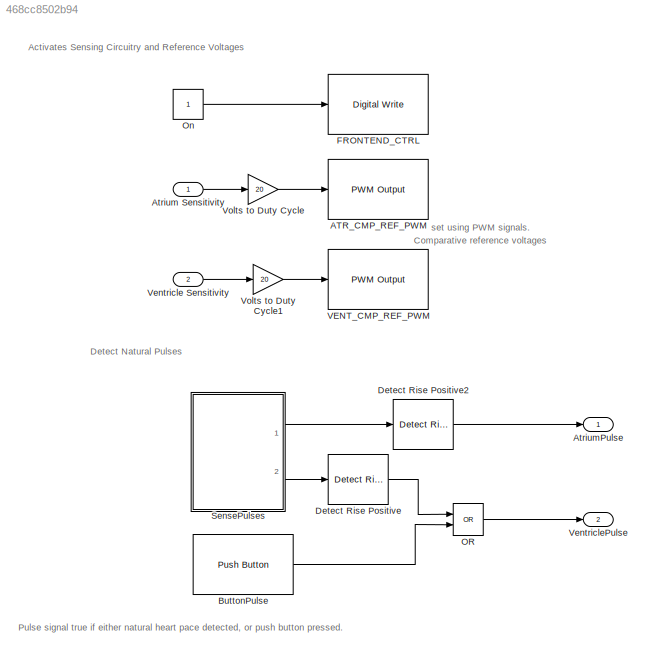
MODEL slx_468cc8502b94
KIND model
CONFIG AbsTol = auto
CONFIG EnableMultiTasking = on
CONFIG FixedStep = 1e-3
CONFIG MaxStep = auto
CONFIG MinStep = auto
CONFIG RelTol = 1e-3
CONFIG SampleTimeConstraint = Unconstrained
CONFIG Solver = FixedStepAuto
CONFIG SolverName = FixedStepAuto
CONFIG StartTime = 0.0
CONFIG StopTime = 10.0
BLOCK [Inport]  Atrium Sensitivity
  OutDataTypeStr = single
  Unit = volt
BLOCK [Reference] ATR_CMP_REF_PWM  REF=frdmk64flib/PWM Output
  Ports = [1]
  SourceBlock = frdmk64flib/PWM Output
  SourceProductBaseCode = EC_FRDM_K64F
  SourceType = freedomk64f.PWMOutput
BLOCK [Outport] AtriumPulse
BLOCK [Reference] ButtonPulse  REF=frdmk64flib/Push Button
  Ports = [0, 1]
  SourceBlock = frdmk64flib/Push Button
  SourceProductBaseCode = EC_FRDM_K64F
  SourceType = freedomk64f.PushButton
BLOCK [Reference] Detect Rise Positive  REF=simulink/Logic and Bit
Operations/Detect Rise
Positive
  Ports = [1, 1]
  SourceBlock = simulink/Logic and Bit\nOperations/Detect Rise\nPositive
  SourceProductBaseCode = SL
  SourceType = Detect Rise Positive
BLOCK [Reference] Detect Rise Positive2  REF=simulink/Logic and Bit
Operations/Detect Rise
Positive
  Ports = [1, 1]
  SourceBlock = simulink/Logic and Bit\nOperations/Detect Rise\nPositive
  SourceProductBaseCode = SL
  SourceType = Detect Rise Positive
BLOCK [Reference] FRONTEND_CTRL  REF=frdmk64flib/Digital Write
  Ports = [1]
  SourceBlock = frdmk64flib/Digital Write
  SourceProductBaseCode = EC_FRDM_K64F
  SourceType = freedomk64f.DigitalWrite
BLOCK [Logic] OR
  AllPortsSameDT = off
  IconShape = distinctive
  Operator = OR
  OutDataTypeStr = boolean
  Ports = [2, 1]
BLOCK [Constant] On
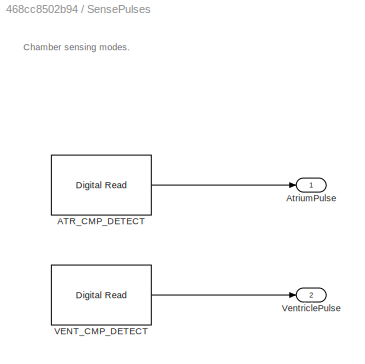
BLOCK [SubSystem] SensePulses
  Ports = [0, 2]
  RequestExecContextInheritance = off
BLOCK [Reference] SensePulses/ATR_CMP_DETECT  REF=frdmk64flib/Digital Read
  Ports = [0, 1]
  SourceBlock = frdmk64flib/Digital Read
  SourceProductBaseCode = EC_FRDM_K64F
  SourceType = freedomk64f.DigitalRead
BLOCK [Outport] SensePulses/AtriumPulse
BLOCK [Reference] SensePulses/VENT_CMP_DETECT  REF=frdmk64flib/Digital Read
  Ports = [0, 1]
  SourceBlock = frdmk64flib/Digital Read
  SourceProductBaseCode = EC_FRDM_K64F
  SourceType = freedomk64f.DigitalRead
BLOCK [Outport] SensePulses/VentriclePulse
  Port = 2
BLOCK [Reference] VENT_CMP_REF_PWM   REF=frdmk64flib/PWM Output
  Ports = [1]
  SourceBlock = frdmk64flib/PWM Output
  SourceProductBaseCode = EC_FRDM_K64F
  SourceType = freedomk64f.PWMOutput
BLOCK [Inport] Ventricle Sensitivity
  OutDataTypeStr = single
  Port = 2
BLOCK [Outport] VentriclePulse
  Port = 2
BLOCK [Gain] Volts to Duty Cycle
  Gain = 20
BLOCK [Gain] Volts to Duty Cycle1
  Gain = 20
ANNOTATION (root): Activates Sensing Circuitry and Reference Voltages
ANNOTATION (root): Comparative reference voltages set using PWM signals.
ANNOTATION (root): Detect Natural Pulses
ANNOTATION (root): Pulse signal true if either natural heart pace detected, or push button pressed.
ANNOTATION SensePulses: Chamber sensing modes.
LINE  Atrium Sensitivity:1 -> Volts to Duty Cycle:1
LINE ButtonPulse:1 -> OR:2
LINE Detect Rise Positive2:1 -> AtriumPulse:1
LINE Detect Rise Positive:1 -> OR:1
LINE OR:1 -> VentriclePulse:1
LINE On:1 -> FRONTEND_CTRL:1
LINE SensePulses/ATR_CMP_DETECT:1 -> SensePulses/AtriumPulse:1
LINE SensePulses/VENT_CMP_DETECT:1 -> SensePulses/VentriclePulse:1
LINE SensePulses:1 -> Detect Rise Positive2:1
LINE SensePulses:2 -> Detect Rise Positive:1
LINE Ventricle Sensitivity:1 -> Volts to Duty Cycle1:1
LINE Volts to Duty Cycle1:1 -> VENT_CMP_REF_PWM :1
LINE Volts to Duty Cycle:1 -> ATR_CMP_REF_PWM:1
